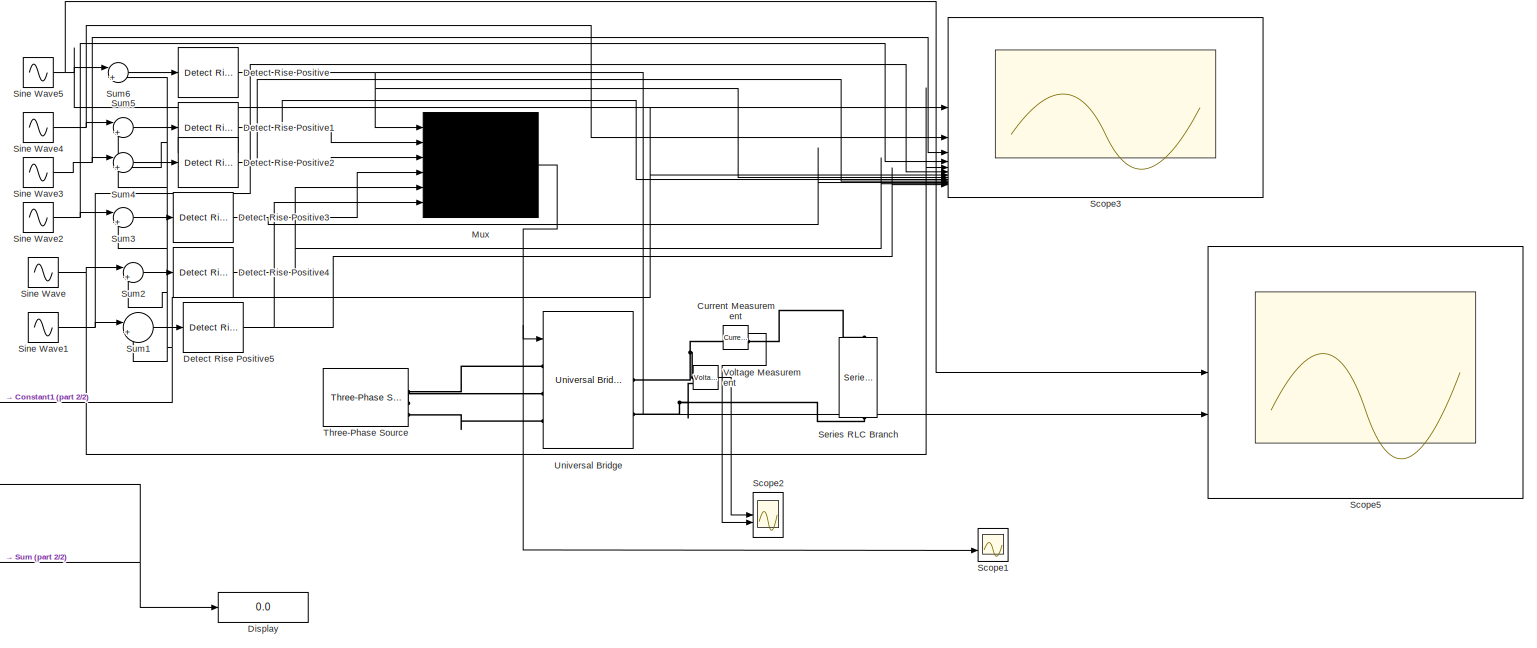
[diagram: root canvas - part 1/2, most of the canvas]
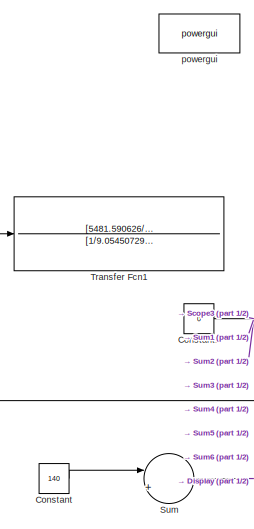
[diagram: root canvas - part 2/2, left side, full height]
MODEL slx_212975674fdf
KIND model
CONFIG AbsTol = auto
CONFIG EnableMultiTasking = off
CONFIG FixedStep = auto
CONFIG MaxStep = auto
CONFIG MinStep = auto
CONFIG RelTol = 1e-3
CONFIG SampleTimeConstraint = Unconstrained
CONFIG SolverName = VariableStepAuto
CONFIG StartTime = 0.0
CONFIG StopTime = 3
BLOCK [Constant] Constant
  SampleTime = 5e-5
  Value = 140
BLOCK [Constant] Constant1
  Value = 0
BLOCK [Reference] Current Measurement  REF=spsCurrentMeasurementLib/Current Measurement
  LibrarySourceBlock = sps_lib/Sensors and Measurements/Current Measurement
  SourceBlock = spsCurrentMeasurementLib/Current Measurement
  SourceType = Current Measurement
  UserDataPersistent = on
BLOCK [Reference] Detect Rise Positive  REF=simulink/Logic and Bit
Operations/Detect Rise
Positive
  SourceBlock = simulink/Logic and Bit\nOperations/Detect Rise\nPositive
  SourceType = Detect Rise Positive
BLOCK [Reference] Detect Rise Positive1  REF=simulink/Logic and Bit
Operations/Detect Rise
Positive
  SourceBlock = simulink/Logic and Bit\nOperations/Detect Rise\nPositive
  SourceType = Detect Rise Positive
BLOCK [Reference] Detect Rise Positive2  REF=simulink/Logic and Bit
Operations/Detect Rise
Positive
  SourceBlock = simulink/Logic and Bit\nOperations/Detect Rise\nPositive
  SourceType = Detect Rise Positive
BLOCK [Reference] Detect Rise Positive3  REF=simulink/Logic and Bit
Operations/Detect Rise
Positive
  SourceBlock = simulink/Logic and Bit\nOperations/Detect Rise\nPositive
  SourceType = Detect Rise Positive
BLOCK [Reference] Detect Rise Positive4  REF=simulink/Logic and Bit
Operations/Detect Rise
Positive
  SourceBlock = simulink/Logic and Bit\nOperations/Detect Rise\nPositive
  SourceType = Detect Rise Positive
BLOCK [Reference] Detect Rise Positive5  REF=simulink/Logic and Bit
Operations/Detect Rise
Positive
  SourceBlock = simulink/Logic and Bit\nOperations/Detect Rise\nPositive
  SourceType = Detect Rise Positive
BLOCK [Display] Display
  Decimation = 1
BLOCK [Mux] Mux
  DisplayOption = signals
  Inputs = 6
BLOCK [Scope] Scope1
  ActiveDisplayYMaximum = 1.125
  ActiveDisplayYMinimum = -0.12499999999999997
  DataLoggingVariableName = ScopeData1
  Floating = off
  GraphicalSettings = {"Style":{"BackgroundColor":[0.12941176470588237,0.12941176470588237,0.12941176470588237],"AxesColor":[0.07058823529411765,0.07058823529411765,0.07058823529411765],"LabelsColor":[0.8509803921568627,0.8509803921568627,0.8509803921568627],"PreserveColors":false,"Visible":[true,true,true,true,true,true,true],"LineStyle":["-","-","-","-","-","-","-"],"LineWidth":[1.5,1.5,1.5,1.5,1.5,1.5,1.5],"BarWidth...<+2785ch>
  LayoutDimensionsString = [1,1]
  MultipleDisplayCache = [{"MaxYLimMag":1.125,"MaxYLimReal":1.125,"MinYLimMag":0,"MinYLimReal":-0.12499999999999997,"PlotAsMagnitudePhase":false,"ShowGrid":true,"ShowLegend":true,"Title":"%<SignalLabel>","YLabel":""}]
  NumInputPorts = 2
  ScopeFrameLocation = window
  ShowLegend = on
  WasSavedAsWebScope = on
  WindowPosition = [0.000000,36.000000,1536.000000,793.000000,]
BLOCK [Scope] Scope2
  ActiveDisplayYMaximum = 4104.9520185879455
  ActiveDisplayYMinimum = -3848.390229839998
  DataLoggingVariableName = ScopeData2
  Floating = off
  GraphicalSettings = {"AxesScalingProperties":{"AlignXAxis":"Center","AlignYAxis":"Center","AutoScaleXAxisLimits":false,"AxesScaling":"Manual","AxesScalingNumUpdates":10,"ExpandOnly":true,"ScaleAxesLimitsAtStop":false,"XAxisDataRange":100,"YAxisDataRange":80},"DisplayProperties":{"ColorOrder":["auto","auto","auto","auto","auto","auto","auto","auto","auto","auto","auto","auto","auto","auto","auto","auto","auto","auto",...<+3439ch>
  LayoutDimensionsString = [2,1]
  MultipleDisplayCache = [{"MaxYLimMag":302.62221034755373,"MaxYLimReal":4104.9520185879455,"MinYLimMag":178.35123771586711,"MinYLimReal":-3848.390229839998,"PlotAsMagnitudePhase":false,"ShowGrid":true,"ShowLegend":true,"Title":"%<SignalLabel>","YLabel":""},{"MaxYLimMag":5.9446775209996862E-5,"MaxYLimReal":6.6051972455552055E-6,"MinYLimMag":0,"MinYLimReal":-5.9446775209996862E-5,"PlotAsMagnitudePhase":false,"ShowGrid":tru...<+58ch>
  NumInputPorts = 10
  ScopeFrameLocation = window
  ShowLegend = on
  WasSavedAsWebScope = on
  WindowPosition = [0.000000,36.000000,1536.000000,793.000000,]
BLOCK [Scope] Scope3
  ActiveDisplayYMaximum = 1249.9999999673053
  ActiveDisplayYMinimum = -1249.9999999961581
  DataLoggingVariableName = ScopeData3
  Floating = off
  GraphicalSettings = {"AxesScalingProperties":{"AlignXAxis":"Center","AlignYAxis":"Center","AutoScaleXAxisLimits":false,"AxesScaling":"Manual","AxesScalingNumUpdates":10,"ExpandOnly":true,"ScaleAxesLimitsAtStop":false,"XAxisDataRange":100,"YAxisDataRange":80},"DisplayProperties":{"ColorOrder":["auto","auto","auto","auto","auto","auto","auto","auto","auto","auto","auto","auto","auto","auto","auto","auto","auto","auto",...<+9410ch>
  LayoutDimensionsString = [5,4]
  MultipleDisplayCache = [{"MaxYLimMag":1249.9999999961581,"MaxYLimReal":1249.9999999673053,"MinYLimMag":0,"MinYLimReal":-1249.9999999961581,"PlotAsMagnitudePhase":false,"ShowGrid":true,"ShowLegend":true,"Title":"%<SignalLabel>","YLabel":""},{"MaxYLimMag":1249.9999999958604,"MaxYLimReal":1249.9999999746772,"MinYLimMag":0,"MinYLimReal":-1249.9999999958604,"PlotAsMagnitudePhase":false,"ShowGrid":true,"ShowLegend":true,"Titl...<+3608ch>
  NumInputPorts = 13
  ScopeFrameLocation = window
  ShowLegend = on
  WasSavedAsWebScope = on
  WindowPosition = [0.000000,36.000000,1536.000000,793.000000,]
BLOCK [Scope] Scope5
  ActiveDisplayYMaximum = 1249.9999999976617
  ActiveDisplayYMinimum = -1249.9999999996196
  DataLoggingVariableName = ScopeData5
  Floating = off
  GraphicalSettings = {"AxesScalingProperties":{"AlignXAxis":"Center","AlignYAxis":"Center","AutoScaleXAxisLimits":false,"AxesScaling":"Manual","AxesScalingNumUpdates":10,"ExpandOnly":true,"ScaleAxesLimitsAtStop":false,"XAxisDataRange":100,"YAxisDataRange":80},"DisplayProperties":{"ColorOrder":["auto","auto","auto","auto","auto","auto","auto","auto","auto","auto","auto","auto","auto","auto","auto","auto","auto","auto",...<+2781ch>
  LayoutDimensionsString = [2,1]
  MultipleDisplayCache = [{"MaxYLimMag":1249.9999999996196,"MaxYLimReal":1249.9999999976617,"MinYLimMag":0,"MinYLimReal":-1249.9999999996196,"PlotAsMagnitudePhase":false,"ShowGrid":true,"ShowLegend":false,"Title":"%<SignalLabel>","YLabel":""},{"MaxYLimMag":1.125,"MaxYLimReal":1.125,"MinYLimMag":0,"MinYLimReal":-0.12499999999999997,"PlotAsMagnitudePhase":false,"ShowGrid":true,"ShowLegend":false,"Title":"%<SignalLabel>","YL...<+10ch>
  NumInputPorts = 5
  ScopeFrameLocation = window
  WasSavedAsWebScope = on
  WindowPosition = [0.000000,36.000000,1536.000000,793.000000,]
BLOCK [Reference] Series RLC Branch  REF=spsSeriesRLCBranchLib/Series RLC Branch
  LibrarySourceBlock = sps_lib/Passives/Series RLC Branch
  NameLocation = left
  SourceBlock = spsSeriesRLCBranchLib/Series RLC Branch
  SourceType = Series RLC Branch
BLOCK [Sin] Sine Wave
  Amplitude = 1000
  Frequency = 5000
  SampleTime = 0
BLOCK [Sin] Sine Wave1
  Amplitude = 1000
  Frequency = 5000
  Phase = pi/3
  SampleTime = 0
BLOCK [Sin] Sine Wave2
  Amplitude = 1000
  Frequency = 5000
  Phase = -(pi/3)
  SampleTime = 0
BLOCK [Sin] Sine Wave3
  Amplitude = 1000
  Frequency = 5000
  Phase = -(2*pi/3)
  SampleTime = 0
BLOCK [Sin] Sine Wave4
  Amplitude = 1000
  Frequency = 5000
  Phase = -(3*pi/3)
  SampleTime = 0
BLOCK [Sin] Sine Wave5
  Amplitude = 1000
  Frequency = 5000
  Phase = -(4*pi/3)
  SampleTime = 0
BLOCK [Sum] Sum
  Inputs = |+-
BLOCK [Sum] Sum1
  Inputs = |+-
BLOCK [Sum] Sum2
  Inputs = |+-
BLOCK [Sum] Sum3
  Inputs = |+-
BLOCK [Sum] Sum4
  Inputs = |+-
BLOCK [Sum] Sum5
  Inputs = |+-
BLOCK [Sum] Sum6
  Inputs = |+-
BLOCK [Reference] Three-Phase Source  REF=spsThreePhaseSourceLib/Three-Phase Source
  LibrarySourceBlock = sps_lib/Sources/Three-Phase Source
  SourceBlock = spsThreePhaseSourceLib/Three-Phase Source
  SourceType = Three-Phase Source
BLOCK [TransferFcn] Transfer Fcn1
  Denominator = [1/9.054507296e-4 1]
  Numerator = [5481.590626/4   5481.557303]
  ParameterTunability = Unconstrained
BLOCK [Reference] Universal Bridge  REF=spsUniversalBridgeLib/Universal Bridge
  LibrarySourceBlock = sps_lib/Power Electronics/Universal Bridge
  SourceBlock = spsUniversalBridgeLib/Universal Bridge
  SourceType = Universal Bridge
BLOCK [Reference] Voltage Measurement  REF=spsVoltageMeasurementLib/Voltage Measurement
  LibrarySourceBlock = sps_lib/Sensors and Measurements/Voltage Measurement
  SourceBlock = spsVoltageMeasurementLib/Voltage Measurement
  SourceType = Voltage Measurement
  UserDataPersistent = on
BLOCK [Reference] powergui  REF=sps_lib/powergui
  LibrarySourceBlock = sps_lib/powergui
  Priority = 1
  SourceBlock = sps_lib/powergui
  SourceType = PSB option menu block
NET Constant1:1 -> Scope3:7, Sum1:2, Sum2:2, Sum3:2, Sum4:2, Sum5:2, Sum6:2
LINE Constant:1 -> Sum:1
LINE Current Measurement:1 -> Scope2:2
NET Detect Rise Positive1:1 -> Mux:2, Scope3:9
NET Detect Rise Positive2:1 -> Mux:3, Scope3:10
NET Detect Rise Positive3:1 -> Mux:4, Scope3:11
NET Detect Rise Positive4:1 -> Mux:5, Scope3:12
NET Detect Rise Positive5:1 -> Mux:6, Scope3:13
NET Detect Rise Positive:1 -> Mux:1, Scope3:8, Scope5:2
NET Mux:1 -> Scope1:2, Universal Bridge:1
NET Sine Wave1:1 -> Scope3:6, Sum1:1
NET Sine Wave2:1 -> Scope3:4, Sum3:1
NET Sine Wave3:1 -> Scope3:3, Sum4:1
NET Sine Wave4:1 -> Scope3:2, Sum5:1
NET Sine Wave5:1 -> Scope3:1, Scope5:1, Sum6:1
NET Sine Wave:1 -> Scope3:5, Sum2:1
LINE Sum1:1 -> Detect Rise Positive5:1
LINE Sum2:1 -> Detect Rise Positive4:1
LINE Sum3:1 -> Detect Rise Positive3:1
LINE Sum4:1 -> Detect Rise Positive2:1
LINE Sum5:1 -> Detect Rise Positive1:1
LINE Sum6:1 -> Detect Rise Positive:1
NET Sum:1 -> Display:1, Transfer Fcn1:1
LINE Voltage Measurement:1 -> Scope2:1
PNET net1: Current Measurement:LConn1 -- Universal Bridge:RConn1 -- Voltage Measurement:LConn1
PLINE Current Measurement:RConn1 -- Series RLC Branch:LConn1
PNET net2: Series RLC Branch:RConn1 -- Universal Bridge:RConn2 -- Voltage Measurement:LConn2
PLINE Three-Phase Source:RConn1 -- Universal Bridge:LConn1
PLINE Three-Phase Source:RConn2 -- Universal Bridge:LConn2
PLINE Three-Phase Source:RConn3 -- Universal Bridge:LConn3
note: NET lines group one-source signal fan-out (src -> all destinations, sorted); 1:1 wires keep LINE; PNET lines group multi-terminal physical nets as a canonical sorted terminal list (undirected conserving connections); 2-terminal nets keep the pairwise PLINE form
